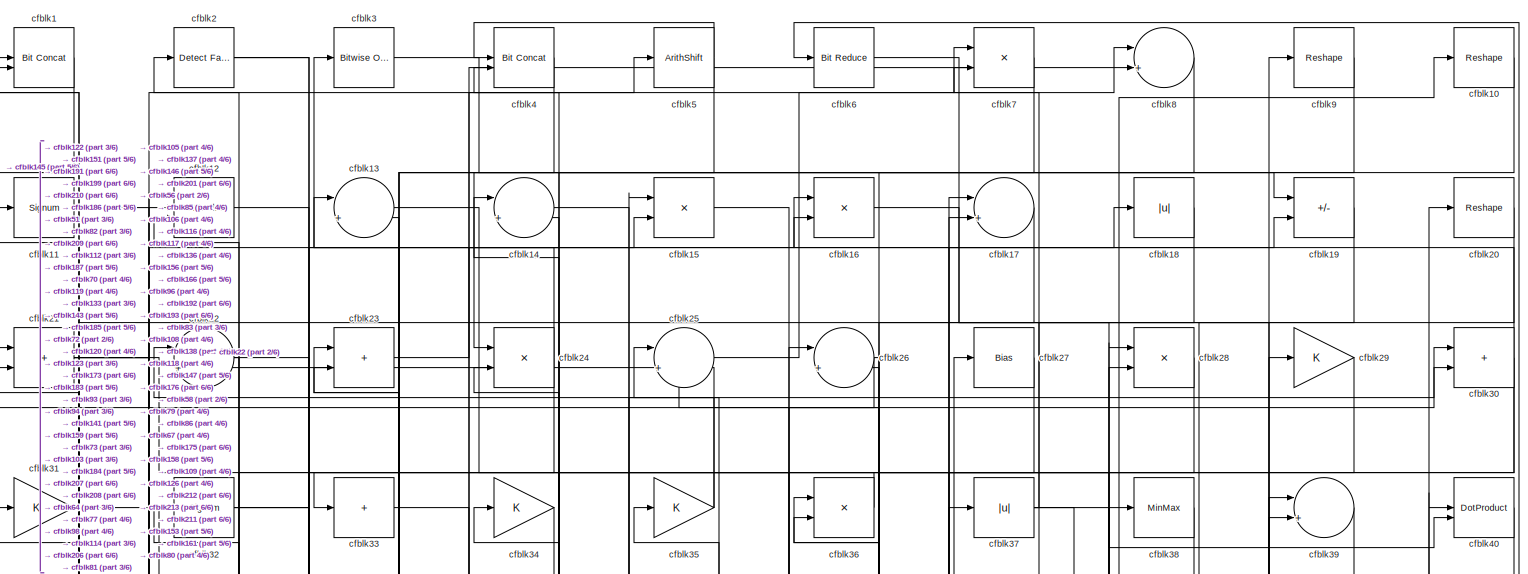
[diagram: root canvas - part 1/6, full width, top band]
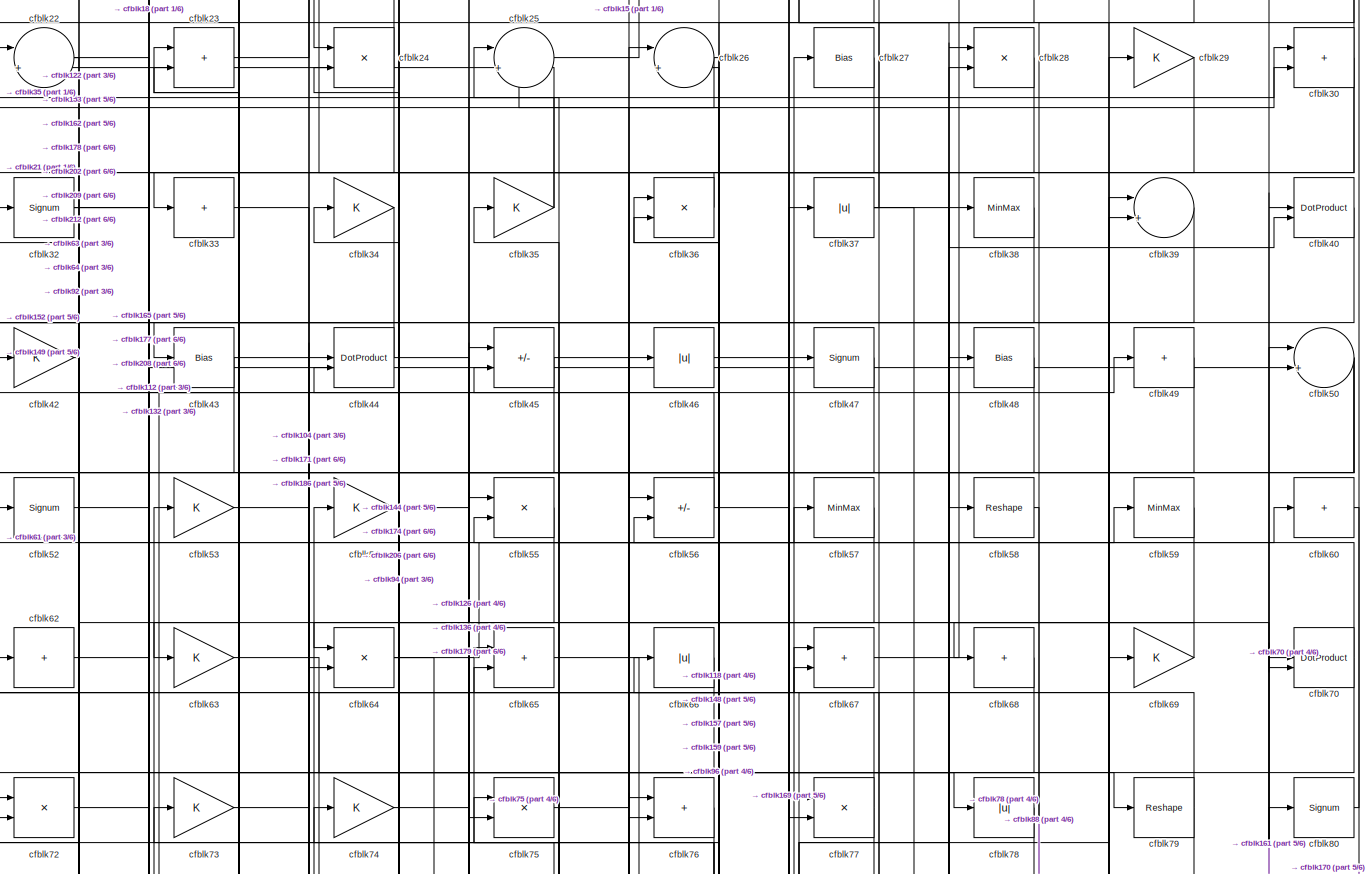
[diagram: root canvas - part 2/6, full width, top band]
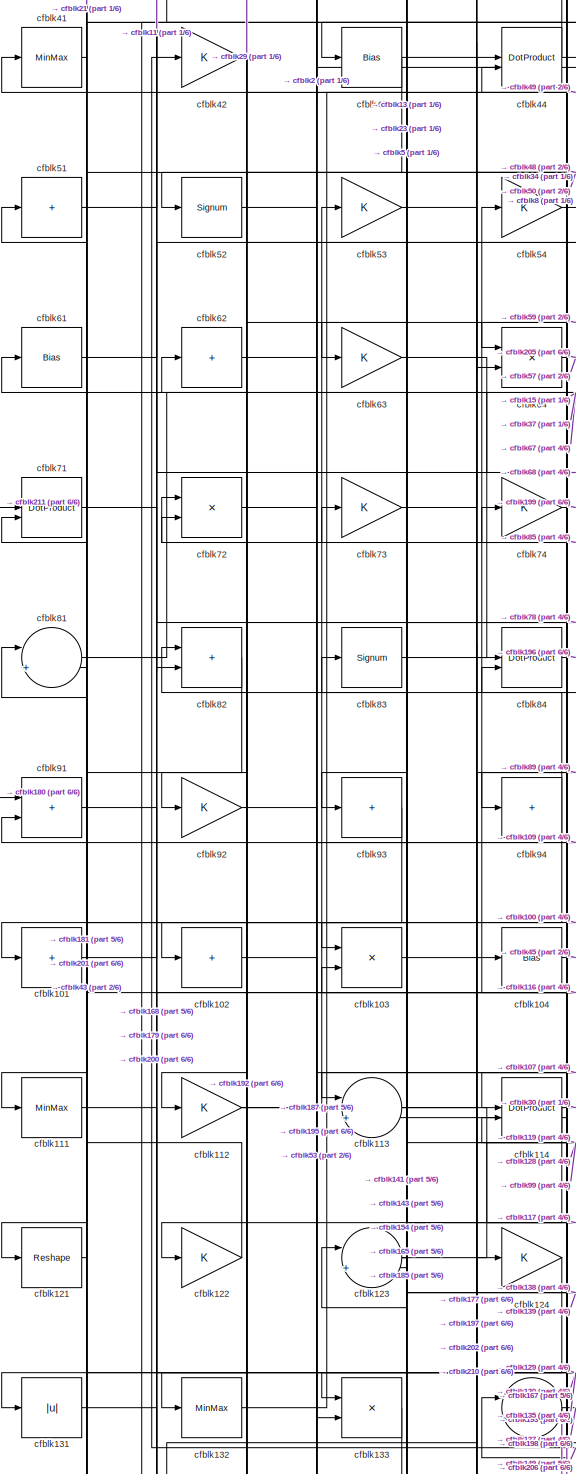
[diagram: root canvas - part 3/6, middle left region]
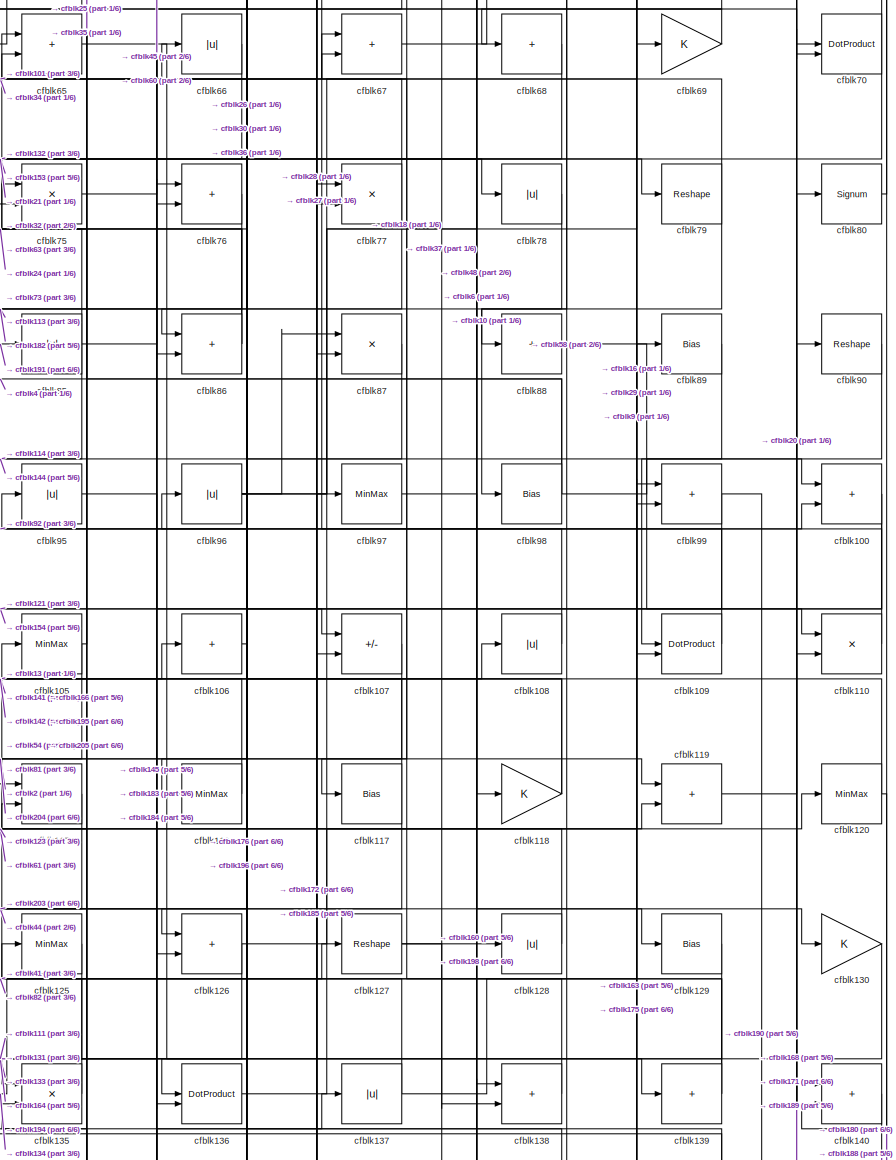
[diagram: root canvas - part 4/6, middle right region]
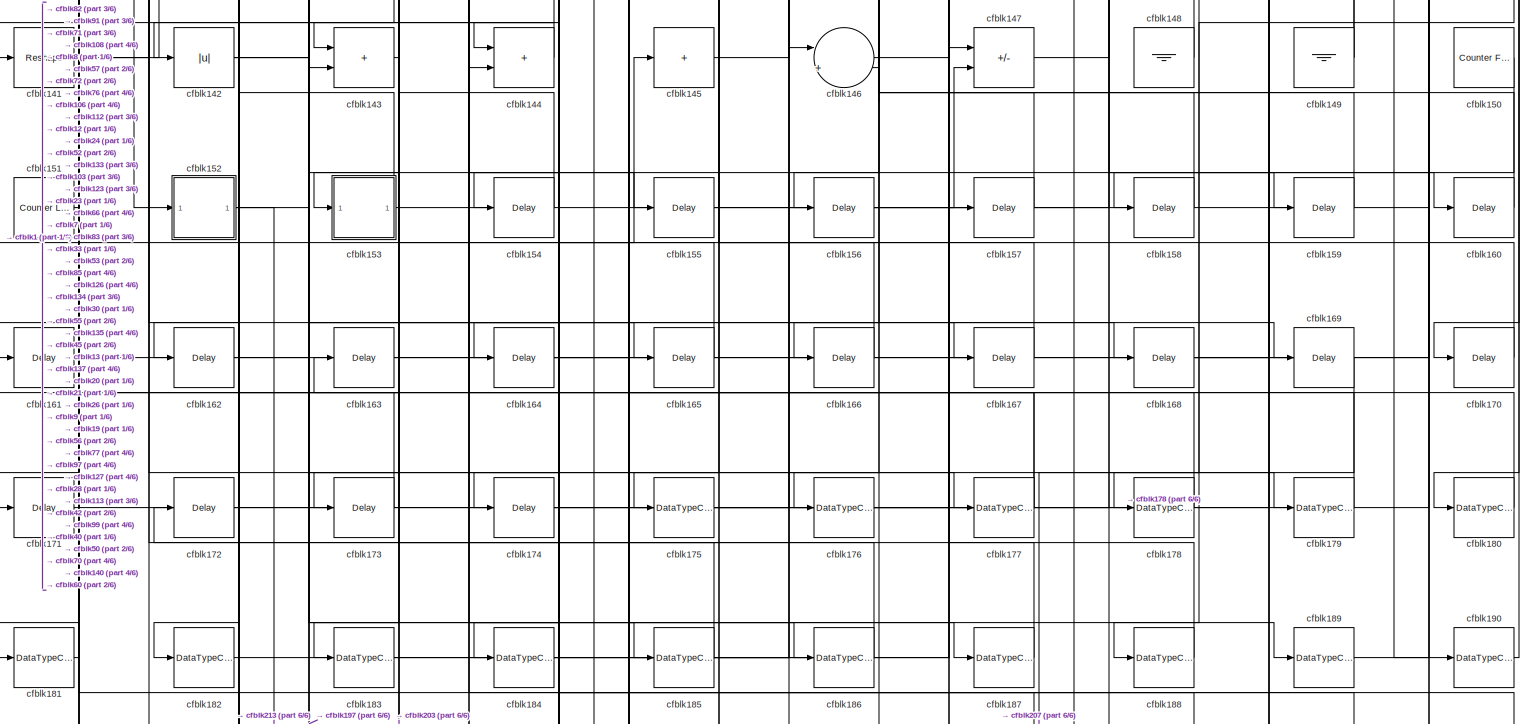
[diagram: root canvas - part 5/6, full width, bottom band]
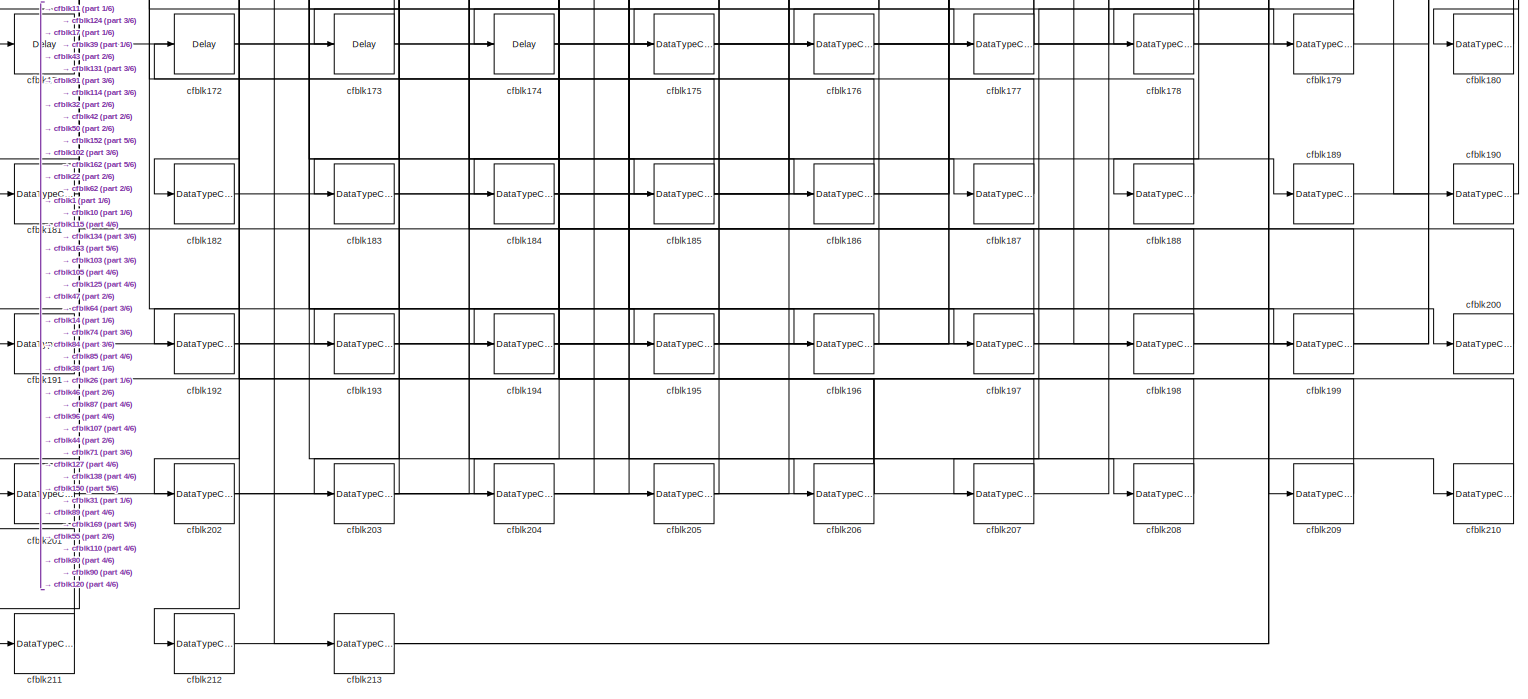
[diagram: root canvas - part 6/6, full width, bottom band]
MODEL slx_5e7577b23fac
KIND model
CONFIG AbsTol = auto
CONFIG EnableMultiTasking = off
CONFIG FixedStep = auto
CONFIG MaxStep = auto
CONFIG MinStep = auto
CONFIG RelTol = 1e-3
CONFIG SampleTimeConstraint = Unconstrained
CONFIG SolverName = VariableStepAuto
CONFIG StartTime = 0.0
CONFIG StopTime = 10.0
BLOCK [Reference] cfblk1  REF=hdlsllib/Logic and Bit
Operations/Bit Concat
  SourceBlock = hdlsllib/Logic and Bit\nOperations/Bit Concat
  SourceType = Bit Concat
BLOCK [Reshape] cfblk10
BLOCK [Sum] cfblk100
  IconShape = rectangular
BLOCK [Sum] cfblk101
  IconShape = rectangular
  Inputs = +
BLOCK [Sum] cfblk102
  IconShape = rectangular
  Inputs = +
BLOCK [Product] cfblk103
  Inputs = */
  RndMeth = Zero
  SaturateOnIntegerOverflow = on
BLOCK [Bias] cfblk104
  Bias = 0.0
  SaturateOnIntegerOverflow = off
BLOCK [MinMax] cfblk105
BLOCK [Sum] cfblk106
  IconShape = rectangular
  Inputs = +
BLOCK [Sum] cfblk107
  IconShape = rectangular
  Inputs = +-
BLOCK [Abs] cfblk108
  SaturateOnIntegerOverflow = off
BLOCK [DotProduct] cfblk109
  OutDataTypeStr = Inherit: Inherit via internal rule
BLOCK [Signum] cfblk11
BLOCK [Product] cfblk110
  Inputs = */
  RndMeth = Zero
  SaturateOnIntegerOverflow = on
BLOCK [MinMax] cfblk111
BLOCK [Gain] cfblk112
BLOCK [Sum] cfblk113
  Inputs = |++
BLOCK [DotProduct] cfblk114
  OutDataTypeStr = Inherit: Inherit via internal rule
BLOCK [Sum] cfblk115
  IconShape = rectangular
BLOCK [MinMax] cfblk116
BLOCK [Bias] cfblk117
  Bias = 0.0
  SaturateOnIntegerOverflow = off
BLOCK [Gain] cfblk118
BLOCK [Sum] cfblk119
  IconShape = rectangular
BLOCK [DotProduct] cfblk12
  OutDataTypeStr = Inherit: Inherit via internal rule
BLOCK [MinMax] cfblk120
BLOCK [Reshape] cfblk121
BLOCK [Gain] cfblk122
BLOCK [Sum] cfblk123
  Inputs = |++
BLOCK [Gain] cfblk124
BLOCK [MinMax] cfblk125
BLOCK [Sum] cfblk126
  IconShape = rectangular
BLOCK [Reshape] cfblk127
BLOCK [Abs] cfblk128
  SaturateOnIntegerOverflow = off
BLOCK [Bias] cfblk129
  Bias = 0.0
  SaturateOnIntegerOverflow = off
BLOCK [Sum] cfblk13
  Inputs = |++
BLOCK [Gain] cfblk130
BLOCK [Abs] cfblk131
  SaturateOnIntegerOverflow = off
BLOCK [MinMax] cfblk132
BLOCK [Product] cfblk133
  Inputs = */
  RndMeth = Zero
  SaturateOnIntegerOverflow = on
BLOCK [Sum] cfblk134
  Inputs = |++
BLOCK [Product] cfblk135
  Inputs = */
  RndMeth = Zero
  SaturateOnIntegerOverflow = on
BLOCK [DotProduct] cfblk136
  OutDataTypeStr = Inherit: Inherit via internal rule
BLOCK [Abs] cfblk137
  SaturateOnIntegerOverflow = off
BLOCK [Sum] cfblk138
  IconShape = rectangular
BLOCK [Sum] cfblk139
  IconShape = rectangular
  Inputs = +
BLOCK [Sum] cfblk14
  Inputs = |++
BLOCK [Sum] cfblk140
  IconShape = rectangular
BLOCK [Reshape] cfblk141
BLOCK [Abs] cfblk142
  SaturateOnIntegerOverflow = off
BLOCK [Sum] cfblk143
  IconShape = rectangular
BLOCK [Sum] cfblk144
  IconShape = rectangular
BLOCK [Sum] cfblk145
  IconShape = rectangular
  Inputs = +
BLOCK [Sum] cfblk146
  Inputs = |++
BLOCK [Sum] cfblk147
  IconShape = rectangular
  Inputs = +-
BLOCK [Ground] cfblk148
BLOCK [Ground] cfblk149
BLOCK [Product] cfblk15
  Inputs = */
  RndMeth = Zero
  SaturateOnIntegerOverflow = on
BLOCK [Reference] cfblk150  REF=hdlsllib/Sources/Counter
Free-Running
  SourceBlock = hdlsllib/Sources/Counter\nFree-Running
  SourceType = Counter Free-Running
BLOCK [Reference] cfblk151  REF=hdlsllib/Sources/Counter
Limited
  SourceBlock = hdlsllib/Sources/Counter\nLimited
  SourceType = Counter Limited
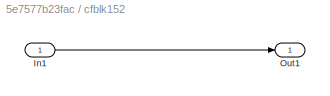
BLOCK [SubSystem] cfblk152
  LibrarySourceBlock = hdlsllib/Ports &\nSubsystems/Subsystem
BLOCK [Inport] cfblk152/In1
BLOCK [Outport] cfblk152/Out1
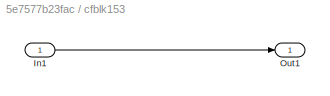
BLOCK [SubSystem] cfblk153
  LibrarySourceBlock = hdlsllib/Ports &\nSubsystems/Subsystem
BLOCK [Inport] cfblk153/In1
BLOCK [Outport] cfblk153/Out1
BLOCK [Delay] cfblk154
  InputPortMap = u0
  SampleTime = 1
BLOCK [Delay] cfblk155
  InputPortMap = u0
  SampleTime = 1
BLOCK [Delay] cfblk156
  InputPortMap = u0
  SampleTime = 1
BLOCK [Delay] cfblk157
  InputPortMap = u0
  SampleTime = 1
BLOCK [Delay] cfblk158
  InputPortMap = u0
  SampleTime = 1
BLOCK [Delay] cfblk159
  InputPortMap = u0
  SampleTime = 1
BLOCK [Product] cfblk16
  Inputs = */
  RndMeth = Zero
  SaturateOnIntegerOverflow = on
BLOCK [Delay] cfblk160
  InputPortMap = u0
  SampleTime = 1
BLOCK [Delay] cfblk161
  InputPortMap = u0
  SampleTime = 1
BLOCK [Delay] cfblk162
  InputPortMap = u0
  SampleTime = 1
BLOCK [Delay] cfblk163
  InputPortMap = u0
  SampleTime = 1
BLOCK [Delay] cfblk164
  InputPortMap = u0
  SampleTime = 1
BLOCK [Delay] cfblk165
  InputPortMap = u0
  SampleTime = 1
BLOCK [Delay] cfblk166
  InputPortMap = u0
  SampleTime = 1
BLOCK [Delay] cfblk167
  InputPortMap = u0
  SampleTime = 1
BLOCK [Delay] cfblk168
  InputPortMap = u0
  SampleTime = 1
BLOCK [Delay] cfblk169
  InputPortMap = u0
  SampleTime = 1
BLOCK [Sum] cfblk17
  Inputs = |++
BLOCK [Delay] cfblk170
  InputPortMap = u0
  SampleTime = 1
BLOCK [Delay] cfblk171
  InputPortMap = u0
  SampleTime = 1
BLOCK [Delay] cfblk172
  InputPortMap = u0
  SampleTime = 1
BLOCK [Delay] cfblk173
  InputPortMap = u0
  SampleTime = 1
BLOCK [Delay] cfblk174
  InputPortMap = u0
  SampleTime = 1
BLOCK [DataTypeConversion] cfblk175
  OutDataTypeStr = uint8
  RndMeth = Floor
  SaturateOnIntegerOverflow = off
BLOCK [DataTypeConversion] cfblk176
  OutDataTypeStr = uint8
  RndMeth = Floor
  SaturateOnIntegerOverflow = off
BLOCK [DataTypeConversion] cfblk177
  RndMeth = Floor
  SaturateOnIntegerOverflow = off
BLOCK [DataTypeConversion] cfblk178
  OutDataTypeStr = uint8
  RndMeth = Floor
  SaturateOnIntegerOverflow = off
BLOCK [DataTypeConversion] cfblk179
  OutDataTypeStr = uint8
  RndMeth = Floor
  SaturateOnIntegerOverflow = off
BLOCK [Abs] cfblk18
  SaturateOnIntegerOverflow = off
BLOCK [DataTypeConversion] cfblk180
  OutDataTypeStr = uint8
  RndMeth = Floor
  SaturateOnIntegerOverflow = off
BLOCK [DataTypeConversion] cfblk181
  OutDataTypeStr = uint8
  RndMeth = Floor
  SaturateOnIntegerOverflow = off
BLOCK [DataTypeConversion] cfblk182
  OutDataTypeStr = uint8
  RndMeth = Floor
  SaturateOnIntegerOverflow = off
BLOCK [DataTypeConversion] cfblk183
  OutDataTypeStr = uint8
  RndMeth = Floor
  SaturateOnIntegerOverflow = off
BLOCK [DataTypeConversion] cfblk184
  OutDataTypeStr = uint8
  RndMeth = Floor
  SaturateOnIntegerOverflow = off
BLOCK [DataTypeConversion] cfblk185
  RndMeth = Floor
  SaturateOnIntegerOverflow = off
BLOCK [DataTypeConversion] cfblk186
  OutDataTypeStr = uint8
  RndMeth = Floor
  SaturateOnIntegerOverflow = off
BLOCK [DataTypeConversion] cfblk187
  OutDataTypeStr = uint8
  RndMeth = Floor
  SaturateOnIntegerOverflow = off
BLOCK [DataTypeConversion] cfblk188
  OutDataTypeStr = uint8
  RndMeth = Floor
  SaturateOnIntegerOverflow = off
BLOCK [DataTypeConversion] cfblk189
  OutDataTypeStr = uint8
  RndMeth = Floor
  SaturateOnIntegerOverflow = off
BLOCK [Sum] cfblk19
  IconShape = rectangular
  Inputs = +-
BLOCK [DataTypeConversion] cfblk190
  OutDataTypeStr = uint8
  RndMeth = Floor
  SaturateOnIntegerOverflow = off
BLOCK [DataTypeConversion] cfblk191
  OutDataTypeStr = uint8
  RndMeth = Floor
  SaturateOnIntegerOverflow = off
BLOCK [DataTypeConversion] cfblk192
  OutDataTypeStr = uint8
  RndMeth = Floor
  SaturateOnIntegerOverflow = off
BLOCK [DataTypeConversion] cfblk193
  OutDataTypeStr = uint8
  RndMeth = Floor
  SaturateOnIntegerOverflow = off
BLOCK [DataTypeConversion] cfblk194
  RndMeth = Floor
  SaturateOnIntegerOverflow = off
BLOCK [DataTypeConversion] cfblk195
  OutDataTypeStr = uint8
  RndMeth = Floor
  SaturateOnIntegerOverflow = off
BLOCK [DataTypeConversion] cfblk196
  OutDataTypeStr = uint8
  RndMeth = Floor
  SaturateOnIntegerOverflow = off
BLOCK [DataTypeConversion] cfblk197
  OutDataTypeStr = uint8
  RndMeth = Floor
  SaturateOnIntegerOverflow = off
BLOCK [DataTypeConversion] cfblk198
  OutDataTypeStr = uint8
  RndMeth = Floor
  SaturateOnIntegerOverflow = off
BLOCK [DataTypeConversion] cfblk199
  OutDataTypeStr = uint8
  RndMeth = Floor
  SaturateOnIntegerOverflow = off
BLOCK [Reference] cfblk2  REF=hdlsllib/Logic and Bit
Operations/Detect Fall
Nonpositive
  SourceBlock = hdlsllib/Logic and Bit\nOperations/Detect Fall\nNonpositive
  SourceType = Detect Fall Nonpositive
BLOCK [Reshape] cfblk20
BLOCK [DataTypeConversion] cfblk200
  OutDataTypeStr = uint8
  RndMeth = Floor
  SaturateOnIntegerOverflow = off
BLOCK [DataTypeConversion] cfblk201
  OutDataTypeStr = uint8
  RndMeth = Floor
  SaturateOnIntegerOverflow = off
BLOCK [DataTypeConversion] cfblk202
  OutDataTypeStr = uint8
  RndMeth = Floor
  SaturateOnIntegerOverflow = off
BLOCK [DataTypeConversion] cfblk203
  RndMeth = Floor
  SaturateOnIntegerOverflow = off
BLOCK [DataTypeConversion] cfblk204
  OutDataTypeStr = uint8
  RndMeth = Floor
  SaturateOnIntegerOverflow = off
BLOCK [DataTypeConversion] cfblk205
  OutDataTypeStr = uint8
  RndMeth = Floor
  SaturateOnIntegerOverflow = off
BLOCK [DataTypeConversion] cfblk206
  RndMeth = Floor
  SaturateOnIntegerOverflow = off
BLOCK [DataTypeConversion] cfblk207
  OutDataTypeStr = uint8
  RndMeth = Floor
  SaturateOnIntegerOverflow = off
BLOCK [DataTypeConversion] cfblk208
  OutDataTypeStr = uint8
  RndMeth = Floor
  SaturateOnIntegerOverflow = off
BLOCK [DataTypeConversion] cfblk209
  OutDataTypeStr = uint8
  RndMeth = Floor
  SaturateOnIntegerOverflow = off
BLOCK [Sum] cfblk21
  IconShape = rectangular
BLOCK [DataTypeConversion] cfblk210
  OutDataTypeStr = uint8
  RndMeth = Floor
  SaturateOnIntegerOverflow = off
BLOCK [DataTypeConversion] cfblk211
  OutDataTypeStr = uint8
  RndMeth = Floor
  SaturateOnIntegerOverflow = off
BLOCK [DataTypeConversion] cfblk212
  OutDataTypeStr = uint8
  RndMeth = Floor
  SaturateOnIntegerOverflow = off
BLOCK [DataTypeConversion] cfblk213
  OutDataTypeStr = uint8
  RndMeth = Floor
  SaturateOnIntegerOverflow = off
BLOCK [Sum] cfblk22
  Inputs = |++
BLOCK [Sum] cfblk23
  IconShape = rectangular
BLOCK [Product] cfblk24
  Inputs = */
  RndMeth = Zero
  SaturateOnIntegerOverflow = on
BLOCK [Sum] cfblk25
  Inputs = |++
BLOCK [Sum] cfblk26
  Inputs = |++
BLOCK [Bias] cfblk27
  Bias = 0.0
  SaturateOnIntegerOverflow = off
BLOCK [Product] cfblk28
  Inputs = */
  RndMeth = Zero
  SaturateOnIntegerOverflow = on
BLOCK [Gain] cfblk29
BLOCK [Reference] cfblk3  REF=simulink/Logic and Bit
Operations/Bitwise
Operator
  LibrarySourceBlock = hdlsllib/Logic and Bit\nOperations/Bitwise\nOperator
  SourceBlock = simulink/Logic and Bit\nOperations/Bitwise\nOperator
  SourceType = Bitwise Operator
BLOCK [Sum] cfblk30
  IconShape = rectangular
BLOCK [Gain] cfblk31
BLOCK [Signum] cfblk32
BLOCK [Sum] cfblk33
  IconShape = rectangular
  Inputs = +
BLOCK [Gain] cfblk34
BLOCK [Gain] cfblk35
BLOCK [Product] cfblk36
  Inputs = */
  RndMeth = Zero
  SaturateOnIntegerOverflow = on
BLOCK [Abs] cfblk37
  SaturateOnIntegerOverflow = off
BLOCK [MinMax] cfblk38
BLOCK [Sum] cfblk39
  Inputs = |++
BLOCK [Reference] cfblk4  REF=hdlsllib/Logic and Bit
Operations/Bit Concat
  SourceBlock = hdlsllib/Logic and Bit\nOperations/Bit Concat
  SourceType = Bit Concat
BLOCK [DotProduct] cfblk40
  OutDataTypeStr = Inherit: Inherit via internal rule
BLOCK [MinMax] cfblk41
BLOCK [Gain] cfblk42
BLOCK [Bias] cfblk43
  Bias = 0.0
  SaturateOnIntegerOverflow = off
BLOCK [DotProduct] cfblk44
  OutDataTypeStr = Inherit: Inherit via internal rule
BLOCK [Sum] cfblk45
  IconShape = rectangular
  Inputs = +-
BLOCK [Abs] cfblk46
  SaturateOnIntegerOverflow = off
BLOCK [Signum] cfblk47
BLOCK [Bias] cfblk48
  Bias = 0.0
  SaturateOnIntegerOverflow = off
BLOCK [Sum] cfblk49
  IconShape = rectangular
  Inputs = +
BLOCK [ArithShift] cfblk5
  BitShiftNumber = 8
  InputPortMap = u0
BLOCK [Sum] cfblk50
  Inputs = |++
BLOCK [Sum] cfblk51
  IconShape = rectangular
  Inputs = +
BLOCK [Signum] cfblk52
BLOCK [Gain] cfblk53
BLOCK [Gain] cfblk54
BLOCK [Product] cfblk55
  Inputs = */
  RndMeth = Zero
  SaturateOnIntegerOverflow = on
BLOCK [Sum] cfblk56
  IconShape = rectangular
  Inputs = +-
BLOCK [MinMax] cfblk57
BLOCK [Reshape] cfblk58
BLOCK [MinMax] cfblk59
BLOCK [Reference] cfblk6  REF=hdlsllib/Logic and Bit
Operations/Bit Reduce
  SourceBlock = hdlsllib/Logic and Bit\nOperations/Bit Reduce
  SourceType = Bit Reduce
BLOCK [Sum] cfblk60
  IconShape = rectangular
  Inputs = +
BLOCK [Bias] cfblk61
  Bias = 0.0
  SaturateOnIntegerOverflow = off
BLOCK [Sum] cfblk62
  IconShape = rectangular
  Inputs = +
BLOCK [Gain] cfblk63
BLOCK [Product] cfblk64
  Inputs = */
  RndMeth = Zero
  SaturateOnIntegerOverflow = on
BLOCK [Sum] cfblk65
  IconShape = rectangular
BLOCK [Abs] cfblk66
  SaturateOnIntegerOverflow = off
BLOCK [Sum] cfblk67
  IconShape = rectangular
BLOCK [Sum] cfblk68
  IconShape = rectangular
  Inputs = +
BLOCK [Gain] cfblk69
BLOCK [Product] cfblk7
  Inputs = */
  RndMeth = Zero
  SaturateOnIntegerOverflow = on
BLOCK [DotProduct] cfblk70
  OutDataTypeStr = Inherit: Inherit via internal rule
BLOCK [DotProduct] cfblk71
  OutDataTypeStr = Inherit: Inherit via internal rule
BLOCK [Product] cfblk72
  Inputs = */
  RndMeth = Zero
  SaturateOnIntegerOverflow = on
BLOCK [Gain] cfblk73
BLOCK [Gain] cfblk74
BLOCK [Product] cfblk75
  Inputs = */
  RndMeth = Zero
  SaturateOnIntegerOverflow = on
BLOCK [Sum] cfblk76
  IconShape = rectangular
BLOCK [Product] cfblk77
  Inputs = */
  RndMeth = Zero
  SaturateOnIntegerOverflow = on
BLOCK [Abs] cfblk78
  SaturateOnIntegerOverflow = off
BLOCK [Reshape] cfblk79
BLOCK [Sum] cfblk8
  Inputs = |++
BLOCK [Signum] cfblk80
BLOCK [Sum] cfblk81
  Inputs = |++
BLOCK [Sum] cfblk82
  IconShape = rectangular
BLOCK [Signum] cfblk83
BLOCK [DotProduct] cfblk84
  OutDataTypeStr = Inherit: Inherit via internal rule
BLOCK [Abs] cfblk85
  SaturateOnIntegerOverflow = off
BLOCK [Sum] cfblk86
  IconShape = rectangular
BLOCK [Product] cfblk87
  Inputs = */
  RndMeth = Zero
  SaturateOnIntegerOverflow = on
BLOCK [Sum] cfblk88
  IconShape = rectangular
  Inputs = +
BLOCK [Bias] cfblk89
  Bias = 0.0
  SaturateOnIntegerOverflow = off
BLOCK [Reshape] cfblk9
BLOCK [Reshape] cfblk90
BLOCK [Sum] cfblk91
  IconShape = rectangular
BLOCK [Gain] cfblk92
BLOCK [Sum] cfblk93
  IconShape = rectangular
  Inputs = +
BLOCK [Sum] cfblk94
  IconShape = rectangular
  Inputs = +
BLOCK [Abs] cfblk95
  SaturateOnIntegerOverflow = off
BLOCK [Abs] cfblk96
  SaturateOnIntegerOverflow = off
BLOCK [MinMax] cfblk97
BLOCK [Bias] cfblk98
  Bias = 0.0
  SaturateOnIntegerOverflow = off
BLOCK [Sum] cfblk99
  IconShape = rectangular
NET cfblk100:1 -> cfblk121:1, cfblk126:1
LINE cfblk101:1 -> cfblk67:1
LINE cfblk102:1 -> cfblk195:1
LINE cfblk103:1 -> cfblk210:1
LINE cfblk104:1 -> cfblk45:1
NET cfblk105:1 -> cfblk204:1, cfblk35:1
LINE cfblk106:1 -> cfblk26:2
LINE cfblk107:1 -> cfblk123:2
LINE cfblk108:1 -> cfblk27:1
LINE cfblk109:1 -> cfblk81:2
LINE cfblk10:1 -> cfblk173:1
LINE cfblk110:1 -> cfblk95:1
LINE cfblk111:1 -> cfblk135:1
NET cfblk112:1 -> cfblk187:1, cfblk53:1
NET cfblk113:1 -> cfblk119:2, cfblk129:1
NET cfblk114:1 -> cfblk192:1, cfblk30:1
LINE cfblk115:1 -> cfblk203:1
LINE cfblk116:1 -> cfblk81:1
NET cfblk117:1 -> cfblk134:2, cfblk36:2
NET cfblk118:1 -> cfblk54:1, cfblk66:1
LINE cfblk119:1 -> cfblk20:1
LINE cfblk11:1 -> cfblk82:2
NET cfblk120:1 -> cfblk13:2, cfblk180:1
LINE cfblk121:1 -> cfblk51:1
LINE cfblk122:1 -> cfblk21:1
NET cfblk123:1 -> cfblk13:1, cfblk143:1, cfblk99:1
LINE cfblk124:1 -> cfblk201:1
LINE cfblk125:1 -> cfblk194:1
NET cfblk126:1 -> cfblk164:1, cfblk29:1
NET cfblk127:1 -> cfblk160:1, cfblk198:1
LINE cfblk128:1 -> cfblk61:1
LINE cfblk129:1 -> cfblk131:1
LINE cfblk12:1 -> cfblk185:1
LINE cfblk130:1 -> cfblk133:1
LINE cfblk131:1 -> cfblk200:1
LINE cfblk132:1 -> cfblk49:1
LINE cfblk133:1 -> cfblk141:1
NET cfblk134:1 -> cfblk127:1, cfblk193:1
LINE cfblk135:1 -> cfblk105:1
LINE cfblk136:1 -> cfblk120:1
NET cfblk137:1 -> cfblk25:1, cfblk69:1
LINE cfblk138:1 -> cfblk82:1
NET cfblk139:1 -> cfblk41:1, cfblk67:2
LINE cfblk13:1 -> cfblk146:1
LINE cfblk140:1 -> cfblk188:1
NET cfblk141:1 -> cfblk108:1, cfblk8:1
NET cfblk142:1 -> cfblk106:1, cfblk155:1
LINE cfblk143:1 -> cfblk23:1
LINE cfblk144:1 -> cfblk142:1
LINE cfblk145:1 -> cfblk137:1
LINE cfblk146:1 -> cfblk19:2
LINE cfblk147:1 -> cfblk28:1
LINE cfblk148:1 -> cfblk56:2
NET cfblk149:1 -> cfblk113:2, cfblk42:1
LINE cfblk14:1 -> cfblk206:1
LINE cfblk150:1 -> cfblk178:1
LINE cfblk151:1 -> cfblk1:1
LINE cfblk152/In1:1 -> cfblk152/Out1:1
NET cfblk152:1 -> cfblk167:1, cfblk213:1
LINE cfblk153/In1:1 -> cfblk153/Out1:1
NET cfblk153:1 -> cfblk40:1, cfblk72:1
LINE cfblk154:1 -> cfblk123:1
LINE cfblk155:1 -> cfblk147:2
LINE cfblk156:1 -> cfblk28:2
LINE cfblk157:1 -> cfblk55:2
LINE cfblk158:1 -> cfblk21:2
LINE cfblk159:1 -> cfblk72:2
LINE cfblk15:1 -> cfblk56:1
LINE cfblk160:1 -> cfblk77:1
LINE cfblk161:1 -> cfblk50:1
LINE cfblk162:1 -> cfblk197:1
LINE cfblk163:1 -> cfblk99:2
LINE cfblk164:1 -> cfblk189:1
LINE cfblk165:1 -> cfblk103:2
LINE cfblk166:1 -> cfblk135:2
LINE cfblk167:1 -> cfblk134:1
LINE cfblk168:1 -> cfblk70:1
LINE cfblk169:1 -> cfblk207:1
LINE cfblk16:1 -> cfblk109:2
LINE cfblk170:1 -> cfblk45:2
LINE cfblk171:1 -> cfblk110:2
LINE cfblk172:1 -> cfblk107:2
LINE cfblk173:1 -> cfblk1:2
LINE cfblk174:1 -> cfblk46:1
LINE cfblk175:1 -> cfblk89:1
LINE cfblk176:1 -> cfblk38:1
NET cfblk177:1 -> cfblk44:1, cfblk71:2
LINE cfblk178:1 -> cfblk62:1
LINE cfblk179:1 -> cfblk55:1
LINE cfblk17:1 -> cfblk191:1
LINE cfblk180:1 -> cfblk91:1
LINE cfblk181:1 -> cfblk91:2
LINE cfblk182:1 -> cfblk157:1
LINE cfblk183:1 -> cfblk76:1
LINE cfblk184:1 -> cfblk76:2
NET cfblk185:1 -> cfblk83:1, cfblk97:1
LINE cfblk186:1 -> cfblk12:1
LINE cfblk187:1 -> cfblk12:2
LINE cfblk188:1 -> cfblk147:1
LINE cfblk189:1 -> cfblk140:1
LINE cfblk18:1 -> cfblk117:1
LINE cfblk190:1 -> cfblk140:2
LINE cfblk191:1 -> cfblk85:1
LINE cfblk192:1 -> cfblk17:1
LINE cfblk193:1 -> cfblk17:2
NET cfblk194:1 -> cfblk80:1, cfblk90:1
LINE cfblk195:1 -> cfblk125:1
LINE cfblk196:1 -> cfblk96:1
LINE cfblk197:1 -> cfblk84:1
LINE cfblk198:1 -> cfblk84:2
LINE cfblk199:1 -> cfblk11:1
LINE cfblk19:1 -> cfblk158:1
LINE cfblk1:1 -> cfblk145:1
LINE cfblk200:1 -> cfblk74:1
LINE cfblk201:1 -> cfblk26:1
LINE cfblk202:1 -> cfblk124:1
NET cfblk203:1 -> cfblk138:1, cfblk163:1
LINE cfblk204:1 -> cfblk115:1
LINE cfblk205:1 -> cfblk115:2
NET cfblk206:1 -> cfblk114:2, cfblk172:1, cfblk44:2
LINE cfblk207:1 -> cfblk14:1
LINE cfblk208:1 -> cfblk14:2
LINE cfblk209:1 -> cfblk32:1
LINE cfblk20:1 -> cfblk166:1
LINE cfblk210:1 -> cfblk31:1
LINE cfblk211:1 -> cfblk71:1
LINE cfblk212:1 -> cfblk39:1
LINE cfblk213:1 -> cfblk39:2
NET cfblk21:1 -> cfblk16:2, cfblk58:1, cfblk79:1, cfblk86:2
NET cfblk22:1 -> cfblk208:1, cfblk52:1
LINE cfblk23:1 -> cfblk8:2
NET cfblk24:1 -> cfblk143:2, cfblk3:1
LINE cfblk25:1 -> cfblk7:1
NET cfblk26:1 -> cfblk156:1, cfblk25:2
LINE cfblk27:1 -> cfblk136:1
LINE cfblk28:1 -> cfblk77:2
LINE cfblk29:1 -> cfblk112:1
NET cfblk2:1 -> cfblk119:1, cfblk133:2
NET cfblk30:1 -> cfblk116:1, cfblk16:1, cfblk184:1
LINE cfblk31:1 -> cfblk209:1
NET cfblk32:1 -> cfblk50:2, cfblk78:1
LINE cfblk33:1 -> cfblk159:1
LINE cfblk34:1 -> cfblk103:1
NET cfblk35:1 -> cfblk22:1, cfblk22:2
LINE cfblk36:1 -> cfblk33:1
NET cfblk37:1 -> cfblk138:2, cfblk40:2, cfblk7:2
LINE cfblk38:1 -> cfblk175:1
LINE cfblk39:1 -> cfblk211:1
LINE cfblk3:1 -> cfblk19:1
LINE cfblk40:1 -> cfblk161:1
LINE cfblk41:1 -> cfblk101:1
LINE cfblk42:1 -> cfblk202:1
NET cfblk43:1 -> cfblk104:1, cfblk171:1
NET cfblk44:1 -> cfblk126:2, cfblk43:1
NET cfblk45:1 -> cfblk70:2, cfblk75:2
LINE cfblk46:1 -> cfblk47:1
LINE cfblk47:1 -> cfblk174:1
LINE cfblk48:1 -> cfblk92:1
LINE cfblk49:1 -> cfblk122:1
LINE cfblk4:1 -> cfblk24:1
NET cfblk50:1 -> cfblk212:1, cfblk63:1, cfblk64:2
LINE cfblk51:1 -> cfblk5:1
LINE cfblk52:1 -> cfblk165:1
LINE cfblk53:1 -> cfblk186:1
LINE cfblk54:1 -> cfblk136:2
LINE cfblk55:1 -> cfblk144:1
NET cfblk56:1 -> cfblk152:1, cfblk169:1
LINE cfblk57:1 -> cfblk162:1
LINE cfblk58:1 -> cfblk88:1
LINE cfblk59:1 -> cfblk94:1
NET cfblk5:1 -> cfblk4:1, cfblk93:1
LINE cfblk60:1 -> cfblk170:1
LINE cfblk61:1 -> cfblk59:1
LINE cfblk62:1 -> cfblk177:1
LINE cfblk63:1 -> cfblk128:1
NET cfblk64:1 -> cfblk205:1, cfblk57:1
LINE cfblk65:1 -> cfblk139:1
LINE cfblk66:1 -> cfblk153:1
LINE cfblk67:1 -> cfblk10:1
LINE cfblk68:1 -> cfblk132:1
LINE cfblk69:1 -> cfblk68:1
LINE cfblk6:1 -> cfblk118:1
NET cfblk70:1 -> cfblk2:1, cfblk87:2
LINE cfblk71:1 -> cfblk168:1
LINE cfblk72:1 -> cfblk18:1
LINE cfblk73:1 -> cfblk15:2
LINE cfblk74:1 -> cfblk199:1
LINE cfblk75:1 -> cfblk60:1
LINE cfblk76:1 -> cfblk182:1
NET cfblk77:1 -> cfblk34:1, cfblk86:1
LINE cfblk78:1 -> cfblk113:1
NET cfblk79:1 -> cfblk65:2, cfblk98:1
LINE cfblk7:1 -> cfblk183:1
LINE cfblk80:1 -> cfblk6:1
LINE cfblk81:1 -> cfblk15:1
LINE cfblk82:1 -> cfblk181:1
LINE cfblk83:1 -> cfblk37:1
LINE cfblk84:1 -> cfblk196:1
NET cfblk85:1 -> cfblk144:2, cfblk30:2, cfblk73:1
NET cfblk86:1 -> cfblk24:2, cfblk65:1
LINE cfblk87:1 -> cfblk176:1
LINE cfblk88:1 -> cfblk110:1
LINE cfblk89:1 -> cfblk114:1
LINE cfblk8:1 -> cfblk64:1
LINE cfblk90:1 -> cfblk109:1
LINE cfblk91:1 -> cfblk179:1
LINE cfblk92:1 -> cfblk100:2
LINE cfblk93:1 -> cfblk111:1
NET cfblk94:1 -> cfblk102:1, cfblk23:2
LINE cfblk95:1 -> cfblk107:1
NET cfblk96:1 -> cfblk36:1, cfblk48:1, cfblk87:1, cfblk9:1
LINE cfblk97:1 -> cfblk130:1
NET cfblk98:1 -> cfblk100:1, cfblk4:2, cfblk75:1
NET cfblk99:1 -> cfblk154:1, cfblk190:1
LINE cfblk9:1 -> cfblk146:2
note: NET lines group one-source signal fan-out (src -> all destinations, sorted); 1:1 wires keep LINE
